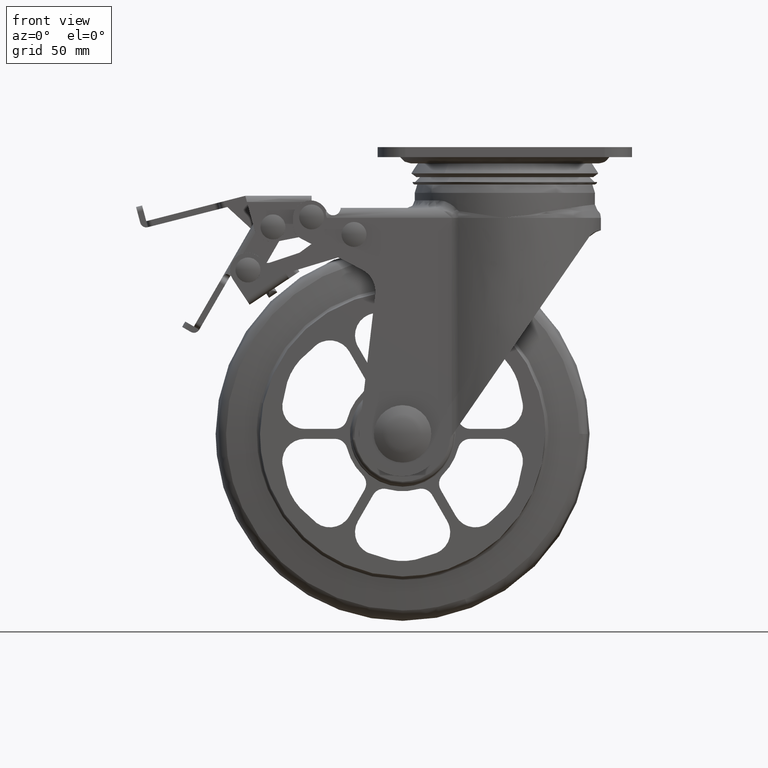
[diagram: clean part render]
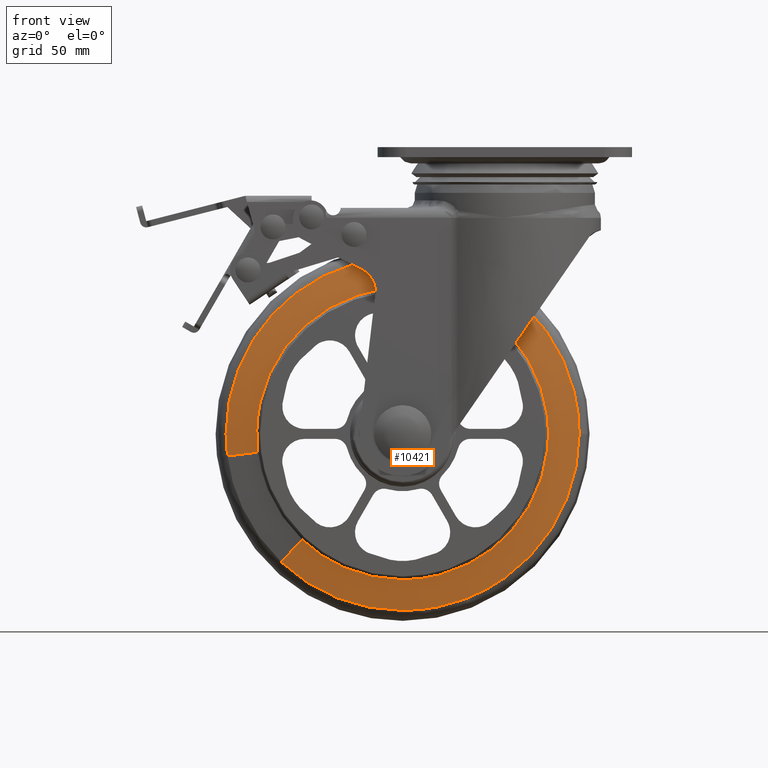
[diagram: same view with one face highlighted and labeled with its STEP entity id]
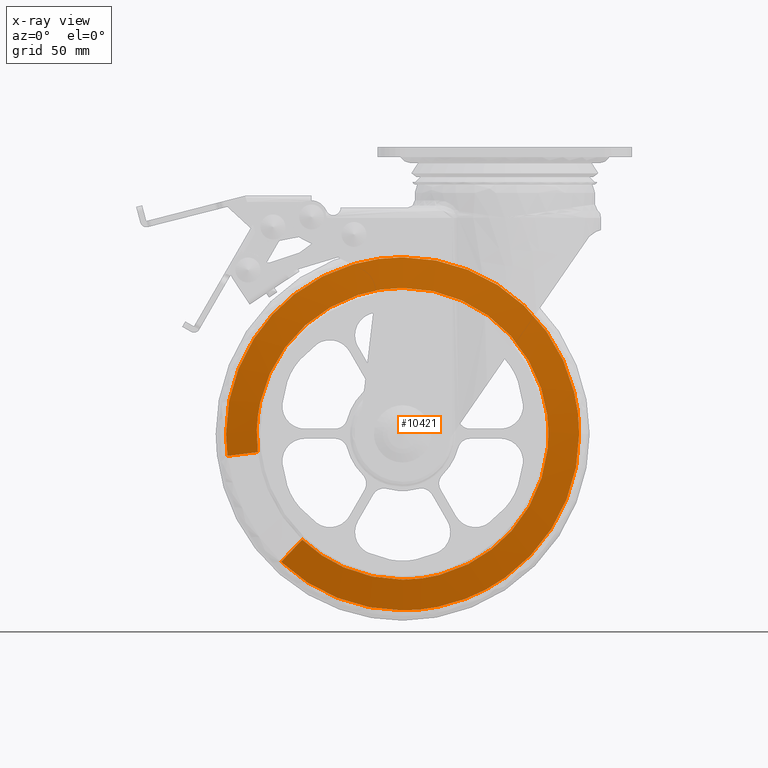
[diagram: x-ray of the same camera — body ghosted, the highlighted face saturated]
A machine part, front view. The second image highlights one B-rep face of the part: STEP entity #10421.
The next image is the same camera in x-ray: the body ghosted, the highlighted face saturated — about 0% of this face is hidden behind the body in this view.
In plain terms, the highlighted face is a freeform B-spline surface patch.
Its self-contained STEP definition (entity closure, byte-faithful):
#10202=CARTESIAN_POINT('',(-57.747767986779991,-16.918367436032707,-7.286189395524373));
#10203=CARTESIAN_POINT('',(-61.199028184548254,-16.918367436032707,20.067281993121345));
#10204=CARTESIAN_POINT('',(-42.220859163152561,-16.918367436032710,40.066099322090977));
#10205=CARTESIAN_POINT('',(-2.154759841061583,-16.918367436032707,82.286958485243474));
#10206=CARTESIAN_POINT('',(40.066099322090921,-16.918367436032710,42.220859163152497));
#10207=CARTESIAN_POINT('',(82.286958485243417,-16.918367436032707,2.154759841061527));
#10208=CARTESIAN_POINT('',(42.220859163152447,-16.918367436032710,-40.066099322090977));
#10209=CARTESIAN_POINT('',(2.154759841061470,-16.918367436032707,-82.286958485243474));
#10210=CARTESIAN_POINT('',(-40.066099322091027,-16.918367436032710,-42.220859163152497));
#10211=CARTESIAN_POINT('',(-70.571683951371014,-14.903098047684894,-8.904216962090906));
#10212=CARTESIAN_POINT('',(-74.789357679758311,-14.903098047684887,24.523577827385481));
#10213=CARTESIAN_POINT('',(-51.596749673501812,-14.903098047684891,48.963487197810707));
#10214=CARTESIAN_POINT('',(-2.633262475691097,-14.903098047684900,100.560236871312450));
#10215=CARTESIAN_POINT('',(48.963487197810650,-14.903098047684891,51.596749673501748));
#10216=CARTESIAN_POINT('',(100.560236871312400,-14.903098047684900,2.633262475691040));
#10217=CARTESIAN_POINT('',(51.596749673501691,-14.903098047684891,-48.963487197810707));
#10218=CARTESIAN_POINT('',(2.633262475690984,-14.903098047684900,-100.560236871312450));
#10219=CARTESIAN_POINT('',(-48.963487197810757,-14.903098047684891,-51.596749673501748));
#10227=(BOUNDED_SURFACE()B_SPLINE_SURFACE(2,1,((#10202,#10211),(#10203,#10212),(#10204,#10213),(#10205,#10214),(#10206,#10215),(#10207,#10216),(#10208,#10217),(#10209,#10218),(#10210,#10219)),.UNSPECIFIED.,.F.,.F.,.U.)B_SPLINE_SURFACE_WITH_KNOTS((3,2,2,2,3),(2,2),(0.0,65.998257629161785,183.852289109807800,301.706320590453910,419.560352071099890),(0.0,13.081748529178871),.UNSPECIFIED.)GEOMETRIC_REPRESENTATION_ITEM()RATIONAL_B_SPLINE_SURFACE(((0.855662221768731,0.855662221768731),(0.835979797464467,0.835979797464467),(1.0,1.0),(0.707106781186548,0.707106781186548),(1.0,1.0),(0.707106781186548,0.707106781186548),(1.0,1.0),(0.707106781186548,0.707106781186548),(1.0,1.0)))REPRESENTATION_ITEM('')SURFACE());
#10228=CARTESIAN_POINT('',(-70.258905280563397,-14.952250988237960,-8.864752845747628));
#10229=VERTEX_POINT('',#10228);
#10230=CARTESIAN_POINT('',(-70.815942033740995,-14.952250961054039,0.000002966417371));
#10231=VERTEX_POINT('',#10230);
#10232=CARTESIAN_POINT('',(-70.258905280563397,-14.952250988237960,-8.864752845747628));
#10233=CARTESIAN_POINT('',(-70.629850294378443,-14.952250979224321,-5.925372010018146));
#10234=CARTESIAN_POINT('',(-70.815986229355559,-14.952250970139190,-2.962689892784112));
#10235=CARTESIAN_POINT('',(-70.815942033740995,-14.952250961054039,0.000002966417371));
#10236=B_SPLINE_CURVE_WITH_KNOTS('',3,(#10232,#10233,#10234,#10235),.UNSPECIFIED.,.F.,.U.,(4,4),(5.233254E-010,8.888078215513353),.UNSPECIFIED.);
#10237=EDGE_CURVE('',#10229,#10231,#10236,.T.);
#10238=ORIENTED_EDGE('',*,*,#10237,.F.);
#10239=CARTESIAN_POINT('',(-58.052917685253448,-16.870413375120979,-7.324690944148586));
#10240=VERTEX_POINT('',#10239);
#10241=CARTESIAN_POINT('',(-58.052917685253448,-16.870413375120979,-7.324690944148586));
#10242=CARTESIAN_POINT('',(-70.258905280563397,-14.952250988237960,-8.864752845747628));
#10243=QUASI_UNIFORM_CURVE('',1,(#10241,#10242),.UNSPECIFIED.,.F.,.U.);
#10244=EDGE_CURVE('',#10240,#10229,#10243,.T.);
#10245=ORIENTED_EDGE('',*,*,#10244,.F.);
#10246=CARTESIAN_POINT('',(-57.150305845815879,-16.870413375631809,12.555273409054250));
#10247=VERTEX_POINT('',#10246);
#10248=CARTESIAN_POINT('',(-58.052917685253448,-16.870413375120979,-7.324690944148586));
#10249=CARTESIAN_POINT('',(-58.326769296123743,-16.870413375171989,-5.154659053433559));
#10250=CARTESIAN_POINT('',(-58.637929457418792,-16.870413375280201,-0.679784091427711));
#10251=CARTESIAN_POINT('',(-58.335103436362637,-16.870413375451779,5.990722453163463));
#10252=CARTESIAN_POINT('',(-57.619664926948978,-16.870413375572060,10.418984381703069));
#10253=CARTESIAN_POINT('',(-57.150305845815879,-16.870413375631809,12.555273409054250));
#10254=B_SPLINE_CURVE_WITH_KNOTS('',3,(#10248,#10249,#10250,#10251,#10252,#10253),.UNSPECIFIED.,.F.,.U.,(4,1,1,4),(4.993801E-009,6.561734625362497,13.435914893136159,19.997649513504779),.UNSPECIFIED.);
#10255=EDGE_CURVE('',#10240,#10247,#10254,.T.);
#10256=ORIENTED_EDGE('',*,*,#10255,.T.);
#10257=CARTESIAN_POINT('',(-5.684342E-014,-16.870413374352850,58.513180992309501));
#10258=VERTEX_POINT('',#10257);
#10259=CARTESIAN_POINT('',(-57.150305845815879,-16.870413375631809,12.555273409054250));
#10260=CARTESIAN_POINT('',(-56.265114076623277,-16.870413375519721,16.587354646308221));
#10261=CARTESIAN_POINT('',(-54.227555194890378,-16.870413375349521,22.690503870257981));
#10262=CARTESIAN_POINT('',(-50.556710696193690,-16.870413375156630,29.636861011534400));
#10263=CARTESIAN_POINT('',(-47.154046485011193,-16.870413375012330,34.815325307567463));
#10264=CARTESIAN_POINT('',(-43.048167066913159,-16.870413374871362,39.873422235112173));
#10265=CARTESIAN_POINT('',(-37.796813580658757,-16.870413374733040,44.857340079522331));
#10266=CARTESIAN_POINT('',(-32.647450136062780,-16.870413374626729,48.671895525505477));
#10267=CARTESIAN_POINT('',(-26.887738417448919,-16.870413374530660,52.122257946582202));
#10268=CARTESIAN_POINT('',(-20.660551252254670,-16.870413374452600,54.927788571354853));
#10269=CARTESIAN_POINT('',(-14.124533177546580,-16.870413374398229,56.885313844134039));
#10270=CARTESIAN_POINT('',(-7.430438701908265,-16.870413374362151,58.176070272057402));
#10271=CARTESIAN_POINT('',(-2.889641646847202,-16.870413374353060,58.513353654400511));
#10272=CARTESIAN_POINT('',(-5.684342E-014,-16.870413374352850,58.513180992309501));
#10273=B_SPLINE_CURVE_WITH_KNOTS('',3,(#10259,#10260,#10261,#10262,#10263,#10264,#10265,#10266,#10267,#10268,#10269,#10270,#10271,#10272),.UNSPECIFIED.,.F.,.U.,(4,1,1,1,1,1,1,1,1,1,1,4),(0.000000074762880,12.384162087020259,19.195469964933679,23.529945200891820,30.960467295094620,38.700564653203742,45.202184217029860,50.155876962114469,58.824825254625210,65.636124417753749,70.589818014018306,79.258713326511554),.UNSPECIFIED.);
#10274=EDGE_CURVE('',#10247,#10258,#10273,.T.);
#10275=ORIENTED_EDGE('',*,*,#10274,.T.);
#10276=CARTESIAN_POINT('',(58.217748934112542,-16.870413374478780,-5.872483185671607));
#10277=VERTEX_POINT('',#10276);
#10278=CARTESIAN_POINT('',(-5.684342E-014,-16.870413374352850,58.513180992309501));
#10279=CARTESIAN_POINT('',(3.947497713800852,-16.870413374347329,58.513753332522903));
#10280=CARTESIAN_POINT('',(9.422744309869785,-16.870413374341140,57.956976959529982));
#10281=CARTESIAN_POINT('',(16.723062448363191,-16.870413374336771,56.158157534168033));
#10282=CARTESIAN_POINT('',(22.386960599364269,-16.870413374334792,54.199506770849283));
#10283=CARTESIAN_POINT('',(28.253748345424370,-16.870413374336060,51.385647595826264));
#10284=CARTESIAN_POINT('',(33.866371456439843,-16.870413374338899,47.855357743925993));
#10285=CARTESIAN_POINT('',(39.167842896007983,-16.870413374345411,43.662324734861542));
#10286=CARTESIAN_POINT('',(44.287600789950531,-16.870413374355209,38.495694707327111));
#10287=CARTESIAN_POINT('',(48.690995772278029,-16.870413374366748,32.706358852753930));
#10288=CARTESIAN_POINT('',(52.104978238011618,-16.870413374381911,26.872620480422150));
#10289=CARTESIAN_POINT('',(54.871533340200223,-16.870413374396271,20.706752458116071));
#10290=CARTESIAN_POINT('',(56.706481901398327,-16.870413374414319,14.862872561201360));
#10291=CARTESIAN_POINT('',(58.046876052529377,-16.870413374432840,8.243139524761114));
#10292=CARTESIAN_POINT('',(58.657083845091258,-16.870413374454429,1.634184925002918));
#10293=CARTESIAN_POINT('',(58.460617018727497,-16.870413374470530,-3.465324273225358));
#10294=CARTESIAN_POINT('',(58.217748934112542,-16.870413374478780,-5.872483185671607));
#10295=B_SPLINE_CURVE_WITH_KNOTS('',3,(#10278,#10279,#10280,#10281,#10282,#10283,#10284,#10285,#10286,#10287,#10288,#10289,#10290,#10291,#10292,#10293,#10294),.UNSPECIFIED.,.F.,.U.,(4,1,1,1,1,1,1,1,1,1,1,1,1,1,4),(0.000000075979926,11.842340340744711,16.426475223773441,22.538651613433430,29.796886035814872,35.909077728892882,42.403287118265141,50.043377592732767,57.683631588942887,64.177869137385557,70.290037735876027,77.930272608272531,82.514405890402116,90.536693962591485,97.794849993077193),.UNSPECIFIED.);
#10296=EDGE_CURVE('',#10258,#10277,#10295,.T.);
#10297=ORIENTED_EDGE('',*,*,#10296,.T.);
#10298=CARTESIAN_POINT('',(-5.684342E-014,-16.870413374352850,-58.513180992309501));
#10299=VERTEX_POINT('',#10298);
#10300=CARTESIAN_POINT('',(58.217748934112542,-16.870413374478780,-5.872483185671607));
#10301=CARTESIAN_POINT('',(57.891976566337171,-16.870413374471092,-9.104636976899879));
#10302=CARTESIAN_POINT('',(56.884840572549813,-16.870413374457922,-14.519690315037650));
#10303=CARTESIAN_POINT('',(54.452008279803280,-16.870413374441029,-21.751241731162128));
#10304=CARTESIAN_POINT('',(51.321776709478527,-16.870413374424491,-28.461264404608411));
#10305=CARTESIAN_POINT('',(46.724048298714081,-16.870413374407590,-35.656793146522190));
#10306=CARTESIAN_POINT('',(40.409718630150202,-16.870413374390939,-42.680197880644911));
#10307=CARTESIAN_POINT('',(33.917690126235179,-16.870413374378170,-47.874479612069287));
#10308=CARTESIAN_POINT('',(27.888456302300781,-16.870413374369679,-51.558268024517140));
#10309=CARTESIAN_POINT('',(21.914469174167571,-16.870413374362279,-54.408107741660061));
#10310=CARTESIAN_POINT('',(15.211018951843400,-16.870413374357859,-56.663064564622744));
#10311=CARTESIAN_POINT('',(7.729209265028374,-16.870413374352729,-58.165142951733387));
#10312=CARTESIAN_POINT('',(2.688439744971964,-16.870413374353479,-58.513297245060173));
#10313=CARTESIAN_POINT('',(-5.684342E-014,-16.870413374352850,-58.513180992309501));
#10314=B_SPLINE_CURVE_WITH_KNOTS('',3,(#10300,#10301,#10302,#10303,#10304,#10305,#10306,#10307,#10308,#10309,#10310,#10311,#10312,#10313),.UNSPECIFIED.,.F.,.U.,(4,1,1,1,1,1,1,1,1,1,1,4),(0.000000081392656,9.745547060459401,16.466684300403269,22.851725957182840,31.925215565752939,42.006907329649223,51.080321354580079,56.793227646264967,63.178291827128767,70.907581284259592,77.964710885313323,86.030021460537839),.UNSPECIFIED.);
#10315=EDGE_CURVE('',#10277,#10299,#10314,.T.);
#10316=ORIENTED_EDGE('',*,*,#10315,.T.);
#10317=CARTESIAN_POINT('',(-40.277815874930887,-16.870413374255239,-42.443961858727761));
#10318=VERTEX_POINT('',#10317);
#10319=CARTESIAN_POINT('',(-5.684342E-014,-16.870413374352850,-58.513180992309501));
#10320=CARTESIAN_POINT('',(-2.892212095598716,-16.870413374312200,-58.513329267119197));
#10321=CARTESIAN_POINT('',(-8.560886153568188,-16.870413374245199,-58.092005043853113));
#10322=CARTESIAN_POINT('',(-17.503761524711251,-16.870413374177641,-56.097601604684492));
#10323=CARTESIAN_POINT('',(-25.918248162269361,-16.870413374157359,-52.740525138300661));
#10324=CARTESIAN_POINT('',(-33.778055058422417,-16.870413374183890,-48.031387969641443));
#10325=CARTESIAN_POINT('',(-38.179980922583347,-16.870413374226850,-44.434935081117722));
#10326=CARTESIAN_POINT('',(-40.277815874930887,-16.870413374255239,-42.443961858727761));
#10327=B_SPLINE_CURVE_WITH_KNOTS('',3,(#10319,#10320,#10321,#10322,#10323,#10324,#10325,#10326),.UNSPECIFIED.,.F.,.U.,(4,1,1,1,1,4),(0.000000022585056,8.676624727276824,17.006214299598739,27.418124198733860,35.747714551850869,44.424338510859812),.UNSPECIFIED.);
#10328=EDGE_CURVE('',#10299,#10318,#10327,.T.);
#10329=ORIENTED_EDGE('',*,*,#10328,.T.);
#10330=CARTESIAN_POINT('',(-48.746476723513609,-14.952251073781181,-51.368068348709031));
#10331=VERTEX_POINT('',#10330);
#10332=CARTESIAN_POINT('',(-40.277815874930887,-16.870413374255239,-42.443961858727761));
#10333=CARTESIAN_POINT('',(-48.746476723513609,-14.952251073781181,-51.368068348709031));
#10334=QUASI_UNIFORM_CURVE('',1,(#10332,#10333),.UNSPECIFIED.,.F.,.U.);
#10335=EDGE_CURVE('',#10318,#10331,#10334,.T.);
#10336=ORIENTED_EDGE('',*,*,#10335,.T.);
#10337=CARTESIAN_POINT('',(-5.684342E-014,-14.952250961054039,-70.815942033741010));
#10338=VERTEX_POINT('',#10337);
#10339=CARTESIAN_POINT('',(-5.684342E-014,-14.952250961054039,-70.815942033741010));
#10340=CARTESIAN_POINT('',(-3.220292102386617,-14.952250968501010,-70.816101355897075));
#10341=CARTESIAN_POINT('',(-8.400703886566495,-14.952250980480850,-70.461913028003494));
#10342=CARTESIAN_POINT('',(-16.262183400315600,-14.952250998660629,-69.048109327481328));
#10343=CARTESIAN_POINT('',(-23.813458883954080,-14.952251016123130,-66.886793371676532));
#10344=CARTESIAN_POINT('',(-31.169378294481589,-14.952251033133811,-63.747750047776620));
#10345=CARTESIAN_POINT('',(-39.838945294182103,-14.952251053182341,-58.863480589433927));
#10346=CARTESIAN_POINT('',(-45.293861983796532,-14.952251065796910,-54.645535962458730));
#10347=CARTESIAN_POINT('',(-48.746476723513609,-14.952251073781181,-51.368068348709031));
#10348=B_SPLINE_CURVE_WITH_KNOTS('',3,(#10339,#10340,#10341,#10342,#10343,#10344,#10345,#10346,#10347),.UNSPECIFIED.,.F.,.U.,(4,1,1,1,1,1,4),(0.000000016877244,9.660860922378234,15.541398861281390,23.942156082813060,33.182963062748129,39.483546429823313,53.764832042191273),.UNSPECIFIED.);
#10349=EDGE_CURVE('',#10338,#10331,#10348,.T.);
#10350=ORIENTED_EDGE('',*,*,#10349,.F.);
#10351=CARTESIAN_POINT('',(25.019411594881600,-14.952250959595821,-66.248975017706783));
#10352=VERTEX_POINT('',#10351);
#10353=CARTESIAN_POINT('',(25.019411594881600,-14.952250959595821,-66.248975017706783));
#10354=CARTESIAN_POINT('',(21.655381461007760,-14.952250960001590,-67.519607019549738));
#10355=CARTESIAN_POINT('',(13.451363623598530,-14.952250960768520,-69.922279158653978));
#10356=CARTESIAN_POINT('',(4.927924912762175,-14.952250961054430,-70.816809420783827));
#10357=CARTESIAN_POINT('',(-5.684342E-014,-14.952250961054039,-70.815942033741010));
#10358=B_SPLINE_CURVE_WITH_KNOTS('',3,(#10353,#10354,#10355,#10356,#10357),.UNSPECIFIED.,.F.,.U.,(4,1,4),(4.299689E-009,10.788002511334341,25.571554029287199),.UNSPECIFIED.);
#10359=EDGE_CURVE('',#10352,#10338,#10358,.T.);
#10360=ORIENTED_EDGE('',*,*,#10359,.F.);
#10361=CARTESIAN_POINT('',(70.815942034408579,-14.952250960949970,2.899995E-015));
#10362=VERTEX_POINT('',#10361);
#10363=CARTESIAN_POINT('',(70.815942034408579,-14.952250960949970,2.899995E-015));
#10364=CARTESIAN_POINT('',(70.815979867147348,-14.952250960955730,-2.677056465651056));
#10365=CARTESIAN_POINT('',(70.480431005013614,-14.952250960957230,-8.588904564186265));
#10366=CARTESIAN_POINT('',(68.922816311268917,-14.952250960924410,-17.055889284706069));
#10367=CARTESIAN_POINT('',(66.119181329385086,-14.952250960851750,-25.894997302422482));
#10368=CARTESIAN_POINT('',(62.633998155028728,-14.952250960753600,-33.400292304765927));
#10369=CARTESIAN_POINT('',(58.235844492059350,-14.952250960625950,-40.527693157484173));
#10370=CARTESIAN_POINT('',(54.198039566395700,-14.952250960504520,-45.739031391522232));
#10371=CARTESIAN_POINT('',(49.398471643772908,-14.952250960359111,-50.877182623769251));
#10372=CARTESIAN_POINT('',(43.152856157346449,-14.952250960166729,-56.463369240819752));
#10373=CARTESIAN_POINT('',(34.754334155617670,-14.952250959905109,-62.032713694753632));
#10374=CARTESIAN_POINT('',(28.045578642721232,-14.952250959691661,-65.106182352053281));
#10375=CARTESIAN_POINT('',(25.019411594881600,-14.952250959595821,-66.248975017706783));
#10376=B_SPLINE_CURVE_WITH_KNOTS('',3,(#10363,#10364,#10365,#10366,#10367,#10368,#10369,#10370,#10371,#10372,#10373,#10374,#10375),.UNSPECIFIED.,.F.,.U.,(4,1,1,1,1,1,1,1,1,1,4),(0.000000055792512,8.031183613765464,17.735527983031972,25.766723021422859,35.805716689799233,42.498415260285753,50.864166432109791,55.549009533270670,63.580219354273957,75.961667093335251,85.665981220488021),.UNSPECIFIED.);
#10377=EDGE_CURVE('',#10362,#10352,#10376,.T.);
#10378=ORIENTED_EDGE('',*,*,#10377,.F.);
#10379=CARTESIAN_POINT('',(-5.684342E-014,-14.952250961054039,70.815942033741010));
#10380=VERTEX_POINT('',#10379);
#10381=CARTESIAN_POINT('',(-5.684342E-014,-14.952250961054039,70.815942033741010));
#10382=CARTESIAN_POINT('',(4.345248885240746,-14.952250961053990,70.816450292741607));
#10383=CARTESIAN_POINT('',(11.587070254702150,-14.952250961053201,70.147164114771755));
#10384=CARTESIAN_POINT('',(21.159050530096980,-14.952250961049360,67.749439887326972));
#10385=CARTESIAN_POINT('',(28.620295275913481,-14.952250961045531,64.923759348576667));
#10386=CARTESIAN_POINT('',(35.346522322118517,-14.952250961040351,61.512141495110498));
#10387=CARTESIAN_POINT('',(41.559132262748321,-14.952250961034419,57.497457349772603));
#10388=CARTESIAN_POINT('',(47.884798120105323,-14.952250961027040,52.402929873139527));
#10389=CARTESIAN_POINT('',(53.460883011608921,-14.952250961018541,46.688293483255272));
#10390=CARTESIAN_POINT('',(58.240598868309803,-14.952250961009449,40.485388816910763));
#10391=CARTESIAN_POINT('',(62.158944066808388,-14.952250961000290,34.212892554501302));
#10392=CARTESIAN_POINT('',(65.763563549029129,-14.952250960989289,26.769830824779980));
#10393=CARTESIAN_POINT('',(68.175394929599520,-14.952250960978899,19.616610389263389));
#10394=CARTESIAN_POINT('',(70.235355458709321,-14.952250960965150,10.573161259131799));
#10395=CARTESIAN_POINT('',(70.816537801455482,-14.952250960956970,4.490103790123419));
#10396=CARTESIAN_POINT('',(70.815942034408579,-14.952250960949970,2.899995E-015));
#10397=B_SPLINE_CURVE_WITH_KNOTS('',3,(#10381,#10382,#10383,#10384,#10385,#10386,#10387,#10388,#10389,#10390,#10391,#10392,#10393,#10394,#10395,#10396),.UNSPECIFIED.,.F.,.U.,(4,1,1,1,1,1,1,1,1,1,1,1,1,4),(0.000000055826987,13.035645828589010,21.726080595631291,29.547491568611321,36.934384827404529,44.321245200912387,51.708102350669641,61.267513611995497,68.219884726813589,75.172263637771806,83.428197104185813,92.987706719047551,97.767442514836929,111.237596125080300),.UNSPECIFIED.);
#10398=EDGE_CURVE('',#10380,#10362,#10397,.T.);
#10399=ORIENTED_EDGE('',*,*,#10398,.F.);
#10400=CARTESIAN_POINT('',(-70.815942033740995,-14.952250961054039,0.000002966417371));
#10401=CARTESIAN_POINT('',(-70.816722834402341,-14.952250961054050,4.924620018929919));
#10402=CARTESIAN_POINT('',(-69.920809446605531,-14.952250961054039,13.469891701547470));
#10403=CARTESIAN_POINT('',(-66.649644907202500,-14.952250961054039,24.621369277125360));
#10404=CARTESIAN_POINT('',(-62.567163396549709,-14.952250961054050,33.607089429154577));
#10405=CARTESIAN_POINT('',(-58.490759858489987,-14.952250961054000,40.132525966534089));
#10406=CARTESIAN_POINT('',(-53.449184904598482,-14.952250961053990,46.675229079992292));
#10407=CARTESIAN_POINT('',(-48.324236037128600,-14.952250961054110,52.025156867594177));
#10408=CARTESIAN_POINT('',(-41.789805513442779,-14.952250961053981,57.320824240653657));
#10409=CARTESIAN_POINT('',(-36.329924834522842,-14.952250961054069,60.896754163915432));
#10410=CARTESIAN_POINT('',(-30.066539743900741,-14.952250961054091,64.244655982011309));
#10411=CARTESIAN_POINT('',(-23.631314021530638,-14.952250961053741,66.910231477110585));
#10412=CARTESIAN_POINT('',(-16.806718166846110,-14.952250961054171,68.889239246307042));
#10413=CARTESIAN_POINT('',(-9.124872871891943,-14.952250961054840,70.392830936780243));
#10414=CARTESIAN_POINT('',(-3.621023528759030,-14.952250961052229,70.816168539777351));
#10415=CARTESIAN_POINT('',(-5.684342E-014,-14.952250961054039,70.815942033741010));
#10416=B_SPLINE_CURVE_WITH_KNOTS('',3,(#10400,#10401,#10402,#10403,#10404,#10405,#10406,#10407,#10408,#10409,#10410,#10411,#10412,#10413,#10414,#10415),.UNSPECIFIED.,.F.,.U.,(4,1,1,1,1,1,1,1,1,1,1,1,1,4),(0.000000055733651,14.773704385247269,25.636788611735600,34.761751157710719,44.321244534741467,48.666484738654823,59.529484254465537,66.481833830363115,73.868686378565982,79.082973696417213,87.773418003169979,94.725786987652413,100.374557869903900,111.237594452422900),.UNSPECIFIED.);
#10417=EDGE_CURVE('',#10231,#10380,#10416,.T.);
#10418=ORIENTED_EDGE('',*,*,#10417,.F.);
#10419=EDGE_LOOP('',(#10238,#10245,#10256,#10275,#10297,#10316,#10329,#10336,#10350,#10360,#10378,#10399,#10418));
#10420=FACE_OUTER_BOUND('',#10419,.T.);
#10421=ADVANCED_FACE('',(#10420),#10227,.T.);